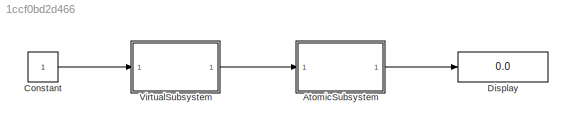
MODEL slx_1ccf0bd2d466
KIND model
CONFIG AbsTol = auto
CONFIG EnableMultiTasking = on
CONFIG FixedStep = auto
CONFIG MaxStep = auto
CONFIG MinStep = auto
CONFIG RelTol = 1e-3
CONFIG SampleTimeConstraint = Unconstrained
CONFIG Solver = FixedStepDiscrete
CONFIG SolverName = FixedStepDiscrete
CONFIG StartTime = 0.0
CONFIG StopTime = 10.0
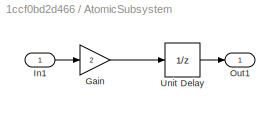
BLOCK [SubSystem] AtomicSubsystem
  Ports = [1, 1]
  RequestExecContextInheritance = off
  TreatAsAtomicUnit = on
BLOCK [Gain] AtomicSubsystem/Gain
  Gain = 2
  OutDataTypeStr = Inherit: Inherit via internal rule
  ParamDataTypeStr = Inherit: Inherit via internal rule
  SaturateOnIntegerOverflow = off
BLOCK [Inport] AtomicSubsystem/In1
  IconDisplay = Port number
BLOCK [Outport] AtomicSubsystem/Out1
  IconDisplay = Port number
BLOCK [UnitDelay] AtomicSubsystem/Unit Delay
  SampleTime = -1
BLOCK [Constant] Constant
  SampleTime = 0.1
BLOCK [Display] Display
  Decimation = 1
  Ports = [1]
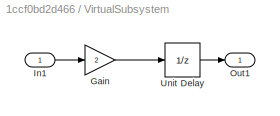
BLOCK [SubSystem] VirtualSubsystem
  Ports = [1, 1]
  RequestExecContextInheritance = off
BLOCK [Gain] VirtualSubsystem/Gain
  Gain = 2
  OutDataTypeStr = Inherit: Inherit via internal rule
  ParamDataTypeStr = Inherit: Inherit via internal rule
  SaturateOnIntegerOverflow = off
BLOCK [Inport] VirtualSubsystem/In1
  IconDisplay = Port number
BLOCK [Outport] VirtualSubsystem/Out1
  IconDisplay = Port number
BLOCK [UnitDelay] VirtualSubsystem/Unit Delay
  SampleTime = -1
LINE AtomicSubsystem/Gain:1 -> AtomicSubsystem/Unit Delay:1
LINE AtomicSubsystem/In1:1 -> AtomicSubsystem/Gain:1
LINE AtomicSubsystem/Unit Delay:1 -> AtomicSubsystem/Out1:1
LINE AtomicSubsystem:1 -> Display:1
LINE Constant:1 -> VirtualSubsystem:1
LINE VirtualSubsystem/Gain:1 -> VirtualSubsystem/Unit Delay:1
LINE VirtualSubsystem/In1:1 -> VirtualSubsystem/Gain:1
LINE VirtualSubsystem/Unit Delay:1 -> VirtualSubsystem/Out1:1
LINE VirtualSubsystem:1 -> AtomicSubsystem:1
